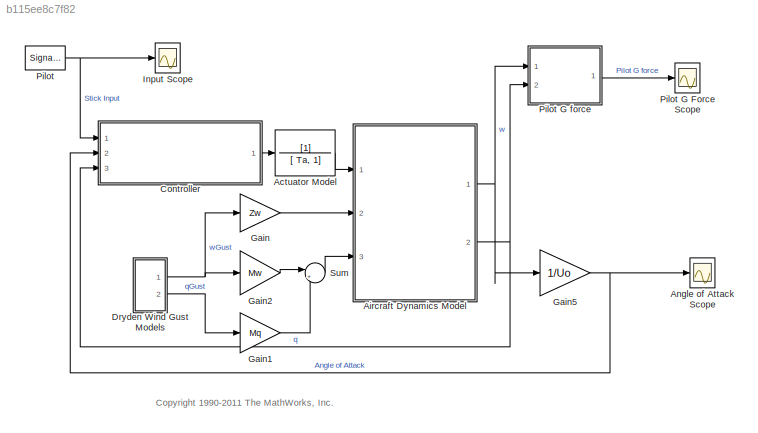
MODEL slx_b115ee8c7f82
KIND model
CONFIG AbsTol = 1e-6
CONFIG FixedStep = auto
CONFIG MaxStep = auto
CONFIG MinStep = auto
CONFIG PreLoadFcn = g = 32.2;\nUo = 689.4000;\nVto = 690.4000;\n% Stability derivatives\nMw = -0.00592;\nMq = -0.6571;\nMd = -6.8847;\nZd = -63.9979;\nZw = -0.6385;\n% Gains\ncmdgain = 3.490954472728077e-02;\nKa = 0.6770;\nKq = 0.8156;\nKf = -1.7460;\nKi = -3.8640;\n% Other constants\na = 2.5348;\nGamma = 0.0100;\nb = 64.1300;\nBeta = 426.4352;\nSa = 0.005236;\nSwg = 3;\nTa = 0.0500;\nTal = 0.3959;\nTs = 0.0444;\nW1 = 2.9710;\nW2 = 4.1440;\nWa...<+6ch>
CONFIG RelTol = 1e-4
CONFIG SampleTimeConstraint = Unconstrained
CONFIG Solver = ode45
CONFIG SolverMode = SingleTasking
CONFIG SolverName = ode45
CONFIG StartTime = 0.0
CONFIG StopTime = 30
BLOCK [TransferFcn] Actuator Model
  Denominator = [ Ta, 1]
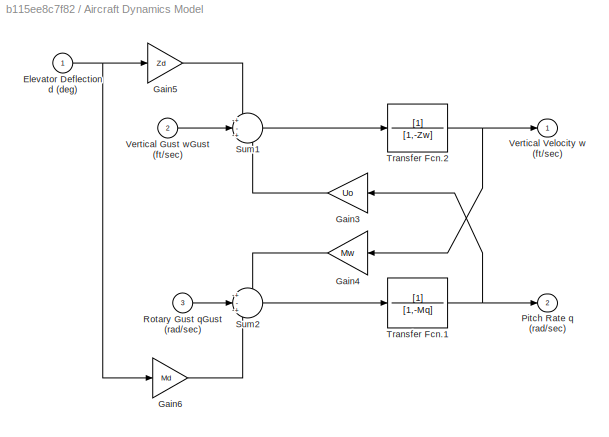
BLOCK [SubSystem] Aircraft Dynamics Model
  Ports = [3, 2]
  RequestExecContextInheritance = off
  Variant = off
BLOCK [Inport] Aircraft Dynamics Model/Elevator Deflection d (deg)
  IconDisplay = Port number
BLOCK [Gain] Aircraft Dynamics Model/Gain3
  Gain = Uo
BLOCK [Gain] Aircraft Dynamics Model/Gain4
  Gain = Mw
BLOCK [Gain] Aircraft Dynamics Model/Gain5
  Gain = Zd
BLOCK [Gain] Aircraft Dynamics Model/Gain6
  Gain = Md
BLOCK [Outport] Aircraft Dynamics Model/Pitch Rate q (rad//sec)
  IconDisplay = Port number
  InitialOutput = 0
  Port = 2
BLOCK [Inport] Aircraft Dynamics Model/Rotary Gust qGust (rad//sec)
  IconDisplay = Port number
  Port = 3
BLOCK [Sum] Aircraft Dynamics Model/Sum1
  IconShape = round
  Inputs = +-+
  Ports = [3, 1]
BLOCK [Sum] Aircraft Dynamics Model/Sum2
  IconShape = round
  Inputs = +-+
  Ports = [3, 1]
BLOCK [TransferFcn] Aircraft Dynamics Model/Transfer Fcn.1
  Denominator = [1,-Mq]
BLOCK [TransferFcn] Aircraft Dynamics Model/Transfer Fcn.2
  Denominator = [1,-Zw]
BLOCK [Inport] Aircraft Dynamics Model/Vertical Gust wGust (ft//sec)
  IconDisplay = Port number
  Port = 2
BLOCK [Outport] Aircraft Dynamics Model/Vertical Velocity w (ft//sec)
  IconDisplay = Port number
  InitialOutput = 0
BLOCK [Scope] Angle of Attack Scope
  Ports = [1]
  ScopeSpecificationString = C++SS(StrPVP('Location','[974, 584, 1298, 780]'),StrPVP('Open','off'),StrPVP('TickLabels','on'),MxPVP('AxesTitles',24,'struct(''axes1'',''%<SignalLabel>'')'),MxPVP('ScopeGraphics',28,'struct(''FigureColor'',''[0.5 0.5 0.5]'',''AxesColor'',''[0 0 0]'',''AxesTickColor'',''[1 1 1]'',''LineColors'',''[1 1 0;1 0 1;0 1 1;1 0 0;0 1 0;0 0 1]'',''LineStyles'',''-|-|-|-|-|-'',''LineWidths'',''[0.5 0.5 0.5 0...<+324ch>
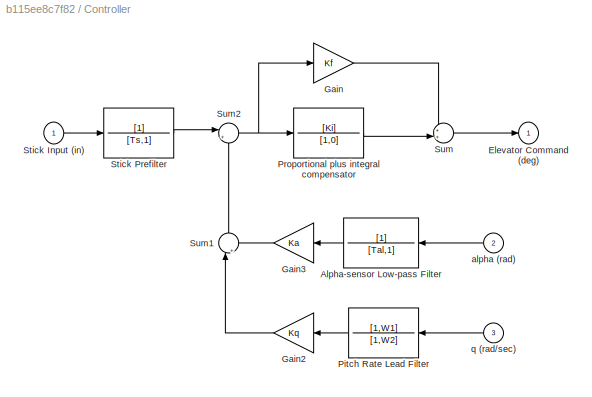
BLOCK [SubSystem] Controller
  Ports = [3, 1]
  RequestExecContextInheritance = off
  Variant = off
BLOCK [TransferFcn] Controller/Alpha-sensor Low-pass Filter
  Denominator = [Tal,1]
BLOCK [Outport] Controller/Elevator Command (deg)
  IconDisplay = Port number
  InitialOutput = 0
BLOCK [Gain] Controller/Gain
  Gain = Kf
BLOCK [Gain] Controller/Gain2
  Gain = Kq
BLOCK [Gain] Controller/Gain3
  Gain = Ka
BLOCK [TransferFcn] Controller/Pitch Rate Lead Filter
  Denominator = [1,W2]
  Numerator = [1,W1]
BLOCK [TransferFcn] Controller/Proportional plus integral compensator
  Denominator = [1,0]
  Numerator = [Ki]
BLOCK [Inport] Controller/Stick Input (in)
  IconDisplay = Port number
BLOCK [TransferFcn] Controller/Stick Prefilter
  Denominator = [Ts,1]
BLOCK [Sum] Controller/Sum
  IconShape = round
  Inputs = ++|
  Ports = [2, 1]
BLOCK [Sum] Controller/Sum1
  IconShape = round
  Inputs = |++
  Ports = [2, 1]
BLOCK [Sum] Controller/Sum2
  IconShape = round
  Inputs = |+-
  Ports = [2, 1]
BLOCK [Inport] Controller/alpha (rad)
  IconDisplay = Port number
  Port = 2
BLOCK [Inport] Controller/q (rad//sec)
  IconDisplay = Port number
  Port = 3
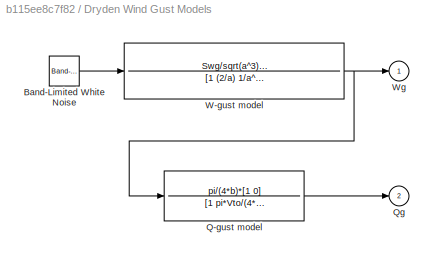
BLOCK [SubSystem] Dryden Wind Gust Models
  Ports = [0, 2]
  RequestExecContextInheritance = off
  Variant = off
BLOCK [Reference] Dryden Wind Gust Models/Band-Limited White Noise  REF=simulink/Sources/Band-Limited
White Noise
  Ports = [0, 1]
  SourceBlock = simulink/Sources/Band-Limited\nWhite Noise
  SourceType = Band-Limited White Noise.
BLOCK [TransferFcn] Dryden Wind Gust Models/Q-gust model
  Denominator = [1 pi*Vto/(4*b)]
  Numerator = pi/(4*b)*[1 0]
BLOCK [Outport] Dryden Wind Gust Models/Qg
  IconDisplay = Port number
  InitialOutput = 0
  Port = 2
BLOCK [TransferFcn] Dryden Wind Gust Models/W-gust model
  Denominator = [1 (2/a) 1/a^2]
  Numerator = Swg/sqrt(a^3)*[sqrt(3)*a,1]
BLOCK [Outport] Dryden Wind Gust Models/Wg
  IconDisplay = Port number
  InitialOutput = 0
BLOCK [Gain] Gain
  Gain = Zw
BLOCK [Gain] Gain1
  Gain = Mq
BLOCK [Gain] Gain2
  Gain = Mw
BLOCK [Gain] Gain5
  Gain = 1/Uo
BLOCK [Scope] Input Scope
  Ports = [1]
  ScopeSpecificationString = C++SS(StrPVP('Location','[661, 584, 958, 782]'),StrPVP('Open','off'),StrPVP('TickLabels','on'),MxPVP('AxesTitles',24,'struct(''axes1'',''%<SignalLabel>'')'),MxPVP('ScopeGraphics',28,'struct(''FigureColor'',''[0.5 0.5 0.5]'',''AxesColor'',''[0 0 0]'',''AxesTickColor'',''[1 1 1]'',''LineColors'',''[1 1 0;1 0 1;0 1 1;1 0 0;0 1 0;0 0 1]'',''LineStyles'',''-|-|-|-|-|-'',''LineWidths'',''[0.5 0.5 0.5 0....<+321ch>
BLOCK [SignalGenerator] Pilot
  Frequency = 0.500000
  Ports = [0, 1]
  Units = rad/sec
  WaveForm = square
BLOCK [Scope] Pilot G Force Scope
  Ports = [1]
  ScopeSpecificationString = C++SS(StrPVP('Location','[1314, 583, 1621, 778]'),StrPVP('Open','off'),StrPVP('TickLabels','on'),MxPVP('AxesTitles',24,'struct(''axes1'',''%<SignalLabel>'')'),MxPVP('ScopeGraphics',28,'struct(''FigureColor'',''[0.5 0.5 0.5]'',''AxesColor'',''[0 0 0]'',''AxesTickColor'',''[1 1 1]'',''LineColors'',''[1 1 0;1 0 1;0 1 1;1 0 0;0 1 0;0 0 1]'',''LineStyles'',''-|-|-|-|-|-'',''LineWidths'',''[0.5 0.5 0.5 ...<+335ch>
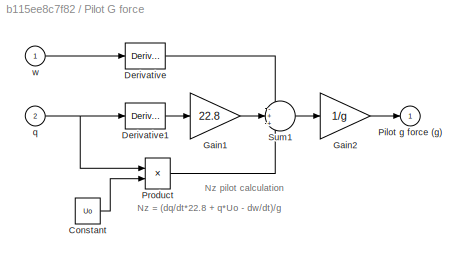
BLOCK [SubSystem] Pilot G force
  Ports = [2, 1]
  RequestExecContextInheritance = off
  Variant = off
BLOCK [Constant] Pilot G force/Constant
  Value = Uo
BLOCK [Derivative] Pilot G force/Derivative
  CoefficientInTFapproximation = 1e-5
BLOCK [Derivative] Pilot G force/Derivative1
  CoefficientInTFapproximation = 1e-5
BLOCK [Gain] Pilot G force/Gain1
  Gain = 22.8
BLOCK [Gain] Pilot G force/Gain2
  Gain = 1/g
BLOCK [Outport] Pilot G force/Pilot g force (g)
  IconDisplay = Port number
  InitialOutput = 0
BLOCK [Product] Pilot G force/Product
  Ports = [2, 1]
BLOCK [Sum] Pilot G force/Sum1
  IconShape = round
  Inputs = -++
  Ports = [3, 1]
BLOCK [Inport] Pilot G force/q
  IconDisplay = Port number
  Port = 2
BLOCK [Inport] Pilot G force/w
  IconDisplay = Port number
BLOCK [Sum] Sum
  IconShape = round
  Inputs = |++
  Ports = [2, 1]
ANNOTATION (root): <copyright redacted>
ANNOTATION Pilot G force: Nz = (dq/dt*22.8 + q*Uo - dw/dt)/g
ANNOTATION Pilot G force: Nz pilot calculation
LINE Actuator Model:1 -> Aircraft Dynamics Model:1
NET Aircraft Dynamics Model/Elevator Deflection d (deg):1 -> Aircraft Dynamics Model/Gain5:1, Aircraft Dynamics Model/Gain6:1
LINE Aircraft Dynamics Model/Gain3:1 -> Aircraft Dynamics Model/Sum1:3
LINE Aircraft Dynamics Model/Gain4:1 -> Aircraft Dynamics Model/Sum2:1
LINE Aircraft Dynamics Model/Gain5:1 -> Aircraft Dynamics Model/Sum1:1
LINE Aircraft Dynamics Model/Gain6:1 -> Aircraft Dynamics Model/Sum2:3
LINE Aircraft Dynamics Model/Rotary Gust qGust (rad//sec):1 -> Aircraft Dynamics Model/Sum2:2
LINE Aircraft Dynamics Model/Sum1:1 -> Aircraft Dynamics Model/Transfer Fcn.2:1
LINE Aircraft Dynamics Model/Sum2:1 -> Aircraft Dynamics Model/Transfer Fcn.1:1
NET Aircraft Dynamics Model/Transfer Fcn.1:1 -> Aircraft Dynamics Model/Gain3:1, Aircraft Dynamics Model/Pitch Rate q (rad//sec):1
NET Aircraft Dynamics Model/Transfer Fcn.2:1 -> Aircraft Dynamics Model/Gain4:1, Aircraft Dynamics Model/Vertical Velocity w (ft//sec):1
LINE Aircraft Dynamics Model/Vertical Gust wGust (ft//sec):1 -> Aircraft Dynamics Model/Sum1:2
NET Aircraft Dynamics Model:1 -> Gain5:1, Pilot G force:1
NET Aircraft Dynamics Model:2 -> Controller:3, Pilot G force:2
LINE Controller/Alpha-sensor Low-pass Filter:1 -> Controller/Gain3:1
LINE Controller/Gain2:1 -> Controller/Sum1:1
LINE Controller/Gain3:1 -> Controller/Sum1:2
LINE Controller/Gain:1 -> Controller/Sum:1
LINE Controller/Pitch Rate Lead Filter:1 -> Controller/Gain2:1
LINE Controller/Proportional plus integral compensator:1 -> Controller/Sum:2
LINE Controller/Stick Input (in):1 -> Controller/Stick Prefilter:1
LINE Controller/Stick Prefilter:1 -> Controller/Sum2:1
LINE Controller/Sum1:1 -> Controller/Sum2:2
NET Controller/Sum2:1 -> Controller/Gain:1, Controller/Proportional plus integral compensator:1
LINE Controller/Sum:1 -> Controller/Elevator Command (deg):1
LINE Controller/alpha (rad):1 -> Controller/Alpha-sensor Low-pass Filter:1
LINE Controller/q (rad//sec):1 -> Controller/Pitch Rate Lead Filter:1
LINE Controller:1 -> Actuator Model:1
LINE Dryden Wind Gust Models/Band-Limited White Noise:1 -> Dryden Wind Gust Models/W-gust model:1
LINE Dryden Wind Gust Models/Q-gust model:1 -> Dryden Wind Gust Models/Qg:1
NET Dryden Wind Gust Models/W-gust model:1 -> Dryden Wind Gust Models/Q-gust model:1, Dryden Wind Gust Models/Wg:1
NET Dryden Wind Gust Models:1 -> Gain2:1, Gain:1
LINE Dryden Wind Gust Models:2 -> Gain1:1
LINE Gain1:1 -> Sum:2
LINE Gain2:1 -> Sum:1
NET Gain5:1 -> Angle of Attack Scope:1, Controller:2
LINE Gain:1 -> Aircraft Dynamics Model:2
LINE Pilot G force/Constant:1 -> Pilot G force/Product:2
LINE Pilot G force/Derivative1:1 -> Pilot G force/Gain1:1
LINE Pilot G force/Derivative:1 -> Pilot G force/Sum1:1
LINE Pilot G force/Gain1:1 -> Pilot G force/Sum1:2
LINE Pilot G force/Gain2:1 -> Pilot G force/Pilot g force (g):1
LINE Pilot G force/Product:1 -> Pilot G force/Sum1:3
LINE Pilot G force/Sum1:1 -> Pilot G force/Gain2:1
NET Pilot G force/q:1 -> Pilot G force/Derivative1:1, Pilot G force/Product:1
LINE Pilot G force/w:1 -> Pilot G force/Derivative:1
LINE Pilot G force:1 -> Pilot G Force Scope:1
NET Pilot:1 -> Controller:1, Input Scope:1
LINE Sum:1 -> Aircraft Dynamics Model:3
note: NET lines group one-source signal fan-out (src -> all destinations, sorted); 1:1 wires keep LINE
